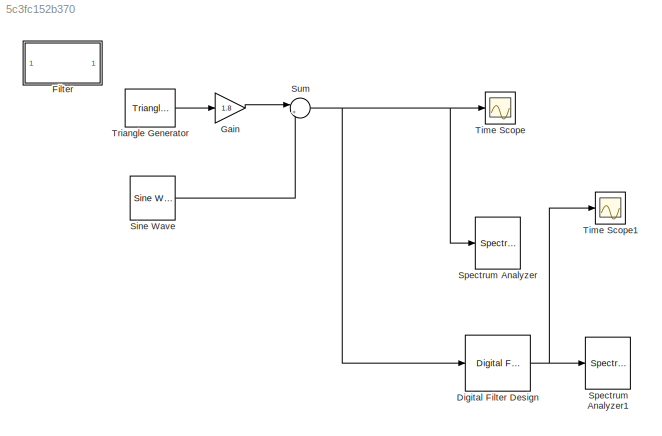
MODEL slx_5c3fc152b370
KIND model
CONFIG AbsTol = auto
CONFIG FixedStep = auto
CONFIG MaxStep = auto
CONFIG MinStep = auto
CONFIG RelTol = 1e-3
CONFIG SampleTimeConstraint = Unconstrained
CONFIG Solver = VariableStepAuto
CONFIG SolverMode = Auto
CONFIG SolverName = VariableStepAuto
CONFIG StartTime = 0.0
CONFIG StopTime = 10.0
BLOCK [Reference] Digital Filter Design  REF=dsparch4/Digital
Filter Design
  Ports = [1, 1]
  SourceBlock = dsparch4/Digital\nFilter Design
  SourceType = Digital Filter Design
  UserDataPersistent = on
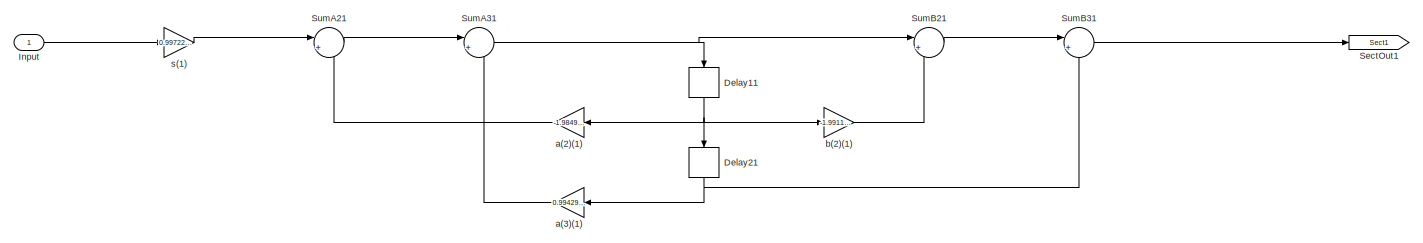
[diagram: Filter - part 1/2, left side, full height]
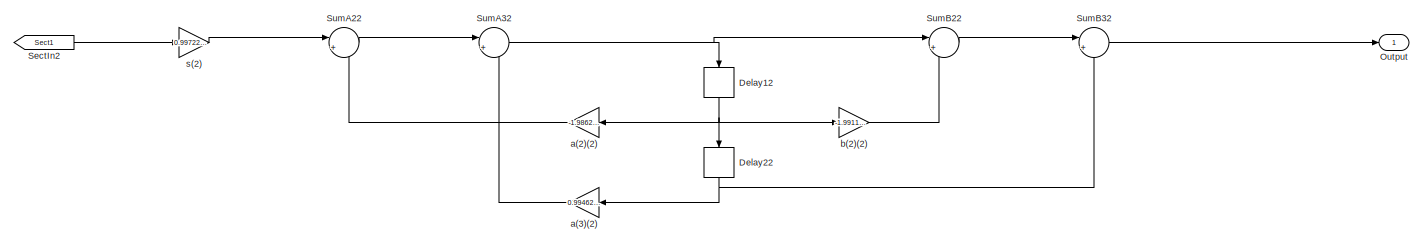
[diagram: Filter - part 2/2, right side, full height]
BLOCK [SubSystem] Filter
  ErrorFcn = dspFilterRealizedInBasicElemsAlgLoopErrFcnCallback
  Ports = [1, 1]
  RequestExecContextInheritance = off
  Tag = FilterWizardSubSystem
  UserDataPersistent = on
  Variant = off
BLOCK [Delay] Filter/Delay11
  DelayLength = 1
  InitialCondition = 0
  InputPortMap = u0
  Ports = [1, 1]
BLOCK [Delay] Filter/Delay12
  DelayLength = 1
  InitialCondition = 0
  InputPortMap = u0
  Ports = [1, 1]
BLOCK [Delay] Filter/Delay21
  DelayLength = 1
  InitialCondition = 0
  InputPortMap = u0
  Ports = [1, 1]
BLOCK [Delay] Filter/Delay22
  DelayLength = 1
  InitialCondition = 0
  InputPortMap = u0
  Ports = [1, 1]
BLOCK [Inport] Filter/Input
  IconDisplay = Port number
BLOCK [Outport] Filter/Output
  IconDisplay = Port number
BLOCK [From] Filter/SectIn2
  GotoTag = Sect1
BLOCK [Goto] Filter/SectOut1
  GotoTag = Sect1
BLOCK [Sum] Filter/SumA21
  IconShape = round
  InputSameDT = off
  Inputs = |+-
  Ports = [2, 1]
  RndMeth = Nearest
BLOCK [Sum] Filter/SumA22
  IconShape = round
  InputSameDT = off
  Inputs = |+-
  Ports = [2, 1]
  RndMeth = Nearest
BLOCK [Sum] Filter/SumA31
  IconShape = round
  InputSameDT = off
  Inputs = |+-
  Ports = [2, 1]
  RndMeth = Nearest
BLOCK [Sum] Filter/SumA32
  IconShape = round
  InputSameDT = off
  Inputs = |+-
  Ports = [2, 1]
  RndMeth = Nearest
BLOCK [Sum] Filter/SumB21
  IconShape = round
  InputSameDT = off
  Inputs = |++
  Ports = [2, 1]
  RndMeth = Nearest
BLOCK [Sum] Filter/SumB22
  IconShape = round
  InputSameDT = off
  Inputs = |++
  Ports = [2, 1]
  RndMeth = Nearest
BLOCK [Sum] Filter/SumB31
  IconShape = round
  InputSameDT = off
  Inputs = |++
  Ports = [2, 1]
  RndMeth = Nearest
BLOCK [Sum] Filter/SumB32
  IconShape = round
  InputSameDT = off
  Inputs = |++
  Ports = [2, 1]
  RndMeth = Nearest
BLOCK [Gain] Filter/a(2)(1)
  Gain = -1.9849274844291762
  ParamDataTypeStr = double
  RndMeth = Nearest
BLOCK [Gain] Filter/a(2)(2)
  Gain = -1.9862931941273301
  ParamDataTypeStr = double
  RndMeth = Nearest
BLOCK [Gain] Filter/a(3)(1)
  Gain = 0.99429942293909601
  ParamDataTypeStr = double
  RndMeth = Nearest
BLOCK [Gain] Filter/a(3)(2)
  Gain = 0.99462418172771416
  ParamDataTypeStr = double
  RndMeth = Nearest
BLOCK [Gain] Filter/b(2)(1)
  Gain = -1.991139282121603
  ParamDataTypeStr = double
  RndMeth = Nearest
BLOCK [Gain] Filter/b(2)(2)
  Gain = -1.991139282121603
  ParamDataTypeStr = double
  RndMeth = Nearest
BLOCK [Gain] Filter/s(1)
  Gain = 0.99722704985283983
  ParamDataTypeStr = double
  RndMeth = Nearest
BLOCK [Gain] Filter/s(2)
  Gain = 0.99722704985283983
  ParamDataTypeStr = double
  RndMeth = Nearest
BLOCK [Gain] Gain
  Gain = 1.8
  OutDataTypeStr = Inherit: Inherit via internal rule
  ParamDataTypeStr = Inherit: Inherit via internal rule
  SaturateOnIntegerOverflow = off
BLOCK [Reference] Sine Wave  REF=dspsrcs4/Sine Wave
  Ports = [0, 1]
  SourceBlock = dspsrcs4/Sine Wave
  SourceType = Sine Wave
BLOCK [SpectrumAnalyzer] Spectrum Analyzer
  Ports = [1]
  ScopeSpecificationString = spbscopes.SpectrumAnalyzerBlockCfg('CurrentConfiguration', extmgr.ConfigurationSet(extmgr.Configuration('Core','General UI',true),extmgr.Configuration('Core','Source UI',true),extmgr.Configuration('Sources','WiredSimulink',true),extmgr.Configuration('Visuals','Spectrum',true,'AxesProperties',struct('Color',[1 1 1],'XColor',[0.686274509803922 0.686274509803922 0.686274509803922],'YColor',[0.6862745...<+1636ch>
BLOCK [SpectrumAnalyzer] Spectrum Analyzer1
  Ports = [1]
  ScopeSpecificationString = spbscopes.SpectrumAnalyzerBlockCfg('CurrentConfiguration', extmgr.ConfigurationSet(extmgr.Configuration('Core','General UI',true),extmgr.Configuration('Core','Source UI',true),extmgr.Configuration('Sources','WiredSimulink',true),extmgr.Configuration('Sources','Simulink',false),extmgr.Configuration('Sources','SimulinkEvent',false),extmgr.Configuration('Sources','File',false),extmgr.Configuration('S...<+3048ch>
BLOCK [Sum] Sum
  IconShape = round
  InputSameDT = off
  Inputs = |++
  OutDataTypeStr = Inherit: Inherit via internal rule
  Ports = [2, 1]
  SaturateOnIntegerOverflow = off
BLOCK [Scope] Time Scope
  DefaultConfigurationName = spbscopes.TimeScopeBlockCfg
  Ports = [1]
  ScopeSpecificationString = spbscopes.TimeScopeBlockCfg('CurrentConfiguration', extmgr.ConfigurationSet(extmgr.Configuration('Core','General UI',true),extmgr.Configuration('Core','Source UI',true),extmgr.Configuration('Sources','WiredSimulink',true),extmgr.Configuration('Visuals','Time Domain',true,'DisplayPropertyDefaults',struct('MinYLimReal','-2.63688','MaxYLimReal','2.63688','YLabelReal','Amplitude','MinYLimMag','0.00000...<+1622ch>
  UserDataPersistent = on
BLOCK [Scope] Time Scope1
  DefaultConfigurationName = spbscopes.TimeScopeBlockCfg
  Ports = [1]
  ScopeSpecificationString = spbscopes.TimeScopeBlockCfg('CurrentConfiguration', extmgr.ConfigurationSet(extmgr.Configuration('Core','General UI',true,'FigureColor',[0 0 0]),extmgr.Configuration('Core','Source UI',true),extmgr.Configuration('Sources','WiredSimulink',true,'DataLoggingVariableName','ScopeData1'),extmgr.Configuration('Visuals','Time Domain',true,'DisplayPropertyDefaults',struct('MinYLimReal','-2.23055','MaxYLimR...<+1705ch>
  UserDataPersistent = on
BLOCK [Reference] Triangle Generator  REF=powerlib_meascontrol/Pulse & Signal
Generators/Triangle
Generator
  Ports = [0, 1]
  SourceBlock = powerlib_meascontrol/Pulse & Signal\nGenerators/Triangle\nGenerator
  SourceType = Triangle Generator
NET Digital Filter Design:1 -> Spectrum Analyzer1:1, Time Scope1:1
NET Filter/Delay11:1 -> Filter/Delay21:1, Filter/a(2)(1):1, Filter/b(2)(1):1
NET Filter/Delay12:1 -> Filter/Delay22:1, Filter/a(2)(2):1, Filter/b(2)(2):1
NET Filter/Delay21:1 -> Filter/SumB31:2, Filter/a(3)(1):1
NET Filter/Delay22:1 -> Filter/SumB32:2, Filter/a(3)(2):1
LINE Filter/Input:1 -> Filter/s(1):1
LINE Filter/SectIn2:1 -> Filter/s(2):1
LINE Filter/SumA21:1 -> Filter/SumA31:1
LINE Filter/SumA22:1 -> Filter/SumA32:1
NET Filter/SumA31:1 -> Filter/Delay11:1, Filter/SumB21:1
NET Filter/SumA32:1 -> Filter/Delay12:1, Filter/SumB22:1
LINE Filter/SumB21:1 -> Filter/SumB31:1
LINE Filter/SumB22:1 -> Filter/SumB32:1
LINE Filter/SumB31:1 -> Filter/SectOut1:1
LINE Filter/SumB32:1 -> Filter/Output:1
LINE Filter/a(2)(1):1 -> Filter/SumA21:2
LINE Filter/a(2)(2):1 -> Filter/SumA22:2
LINE Filter/a(3)(1):1 -> Filter/SumA31:2
LINE Filter/a(3)(2):1 -> Filter/SumA32:2
LINE Filter/b(2)(1):1 -> Filter/SumB21:2
LINE Filter/b(2)(2):1 -> Filter/SumB22:2
LINE Filter/s(1):1 -> Filter/SumA21:1
LINE Filter/s(2):1 -> Filter/SumA22:1
LINE Gain:1 -> Sum:1
LINE Sine Wave:1 -> Sum:2
NET Sum:1 -> Digital Filter Design:1, Spectrum Analyzer:1, Time Scope:1
LINE Triangle Generator:1 -> Gain:1
note: NET lines group one-source signal fan-out (src -> all destinations, sorted); 1:1 wires keep LINE
